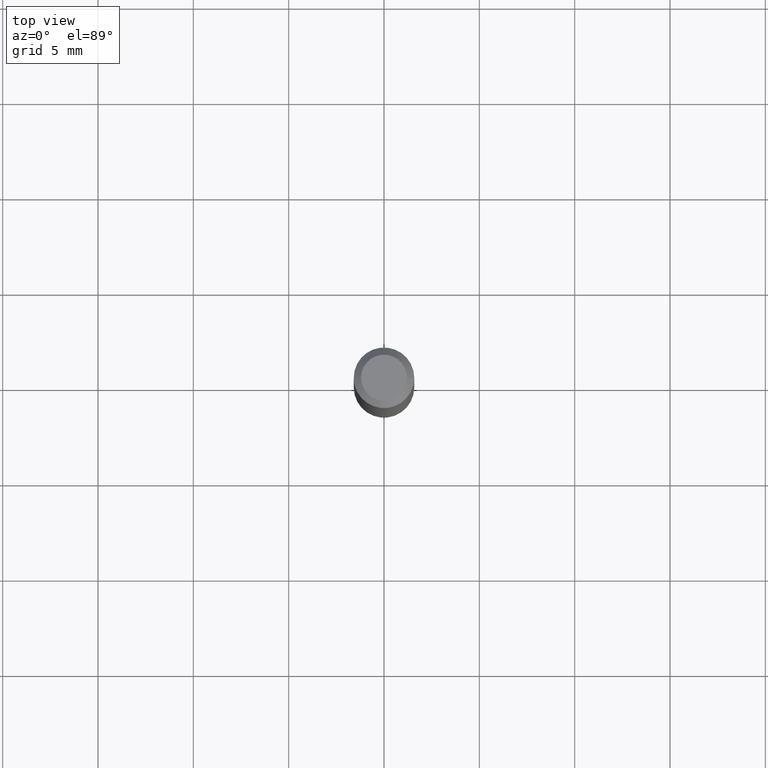
[diagram: clean part render]
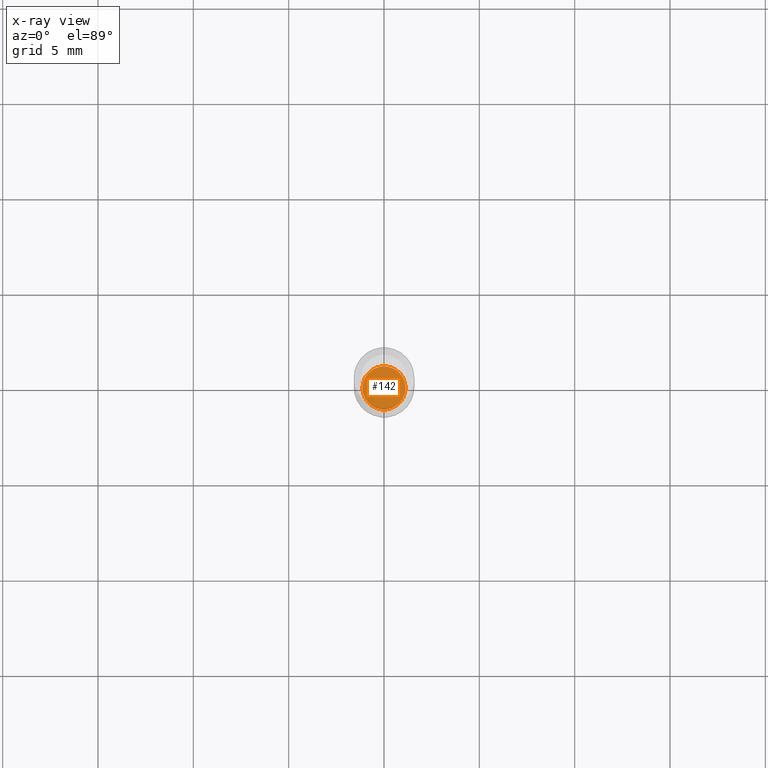
[diagram: x-ray — body ghosted, one internal face saturated and labeled with its STEP entity id]
A machine part, top view, then the same camera in x-ray: the body is ghosted and one INTERNAL B-rep face — a face not visible from any outside direction — is saturated and labeled: STEP entity #142.
In plain terms, the highlighted planar face has unit normal (-0, 0, 1).
Its self-contained STEP definition (entity closure, byte-faithful):
#8 = DIRECTION ( 'NONE',  ( 1.000000000000000000, -6.982962677686257244E-15, 0.000000000000000000 ) ) ;
#26 = EDGE_CURVE ( 'NONE', #227, #368, #355, .T. ) ;
#35 = ORIENTED_EDGE ( 'NONE', *, *, #26, .F. ) ;
#36 = CARTESIAN_POINT ( 'NONE',  ( 3.007926631607718216E-29, -4.294522046777069173E-15, -1.230000000000000204 ) ) ;
#41 = AXIS2_PLACEMENT_3D ( 'NONE', #36, #126, #8 ) ;
#52 = CARTESIAN_POINT ( 'NONE',  ( 3.007926631607718216E-29, -4.294522046777069173E-15, -1.230000000000000204 ) ) ;
#89 = DIRECTION ( 'NONE',  ( -2.445468806185136597E-29, 3.491481338843145583E-15, 1.000000000000000000 ) ) ;
#106 = EDGE_CURVE ( 'NONE', #368, #227, #362, .T. ) ;
#126 = DIRECTION ( 'NONE',  ( -2.445468806185136597E-29, 3.491481338843145583E-15, 1.000000000000000000 ) ) ;
#142 = ADVANCED_FACE ( 'NONE', ( #416 ), #212, .F. ) ;
#151 = CARTESIAN_POINT ( 'NONE',  ( 0.04449999999999999789, -4.605263885934107852E-15, -1.230000000000000204 ) ) ;
#153 = AXIS2_PLACEMENT_3D ( 'NONE', #52, #89, #421 ) ;
#181 = DIRECTION ( 'NONE',  ( -2.438088387897960049E-29, 3.491481338843145188E-15, 1.000000000000000000 ) ) ;
#212 = PLANE ( 'NONE',  #373 ) ;
#217 = DIRECTION ( 'NONE',  ( 1.000000000000000000, -6.982962677686265922E-15, 4.876176775795935793E-29 ) ) ;
#227 = VERTEX_POINT ( 'NONE', #432 ) ;
#314 = ORIENTED_EDGE ( 'NONE', *, *, #106, .F. ) ;
#355 = CIRCLE ( 'NONE', #153, 0.04449999999999999789 ) ;
#362 = CIRCLE ( 'NONE', #41, 0.04449999999999999789 ) ;
#365 = CARTESIAN_POINT ( 'NONE',  ( 3.007926631607718216E-29, -4.294522046777069173E-15, -1.230000000000000204 ) ) ;
#368 = VERTEX_POINT ( 'NONE', #151 ) ;
#373 = AXIS2_PLACEMENT_3D ( 'NONE', #365, #181, #217 ) ;
#416 = FACE_OUTER_BOUND ( 'NONE', #419, .T. ) ;
#419 = EDGE_LOOP ( 'NONE', ( #314, #35 ) ) ;
#421 = DIRECTION ( 'NONE',  ( 1.000000000000000000, -6.982962677686257244E-15, 0.000000000000000000 ) ) ;
#432 = CARTESIAN_POINT ( 'NONE',  ( -0.04449999999999999789, -3.975681302189713503E-15, -1.230000000000000204 ) ) ;